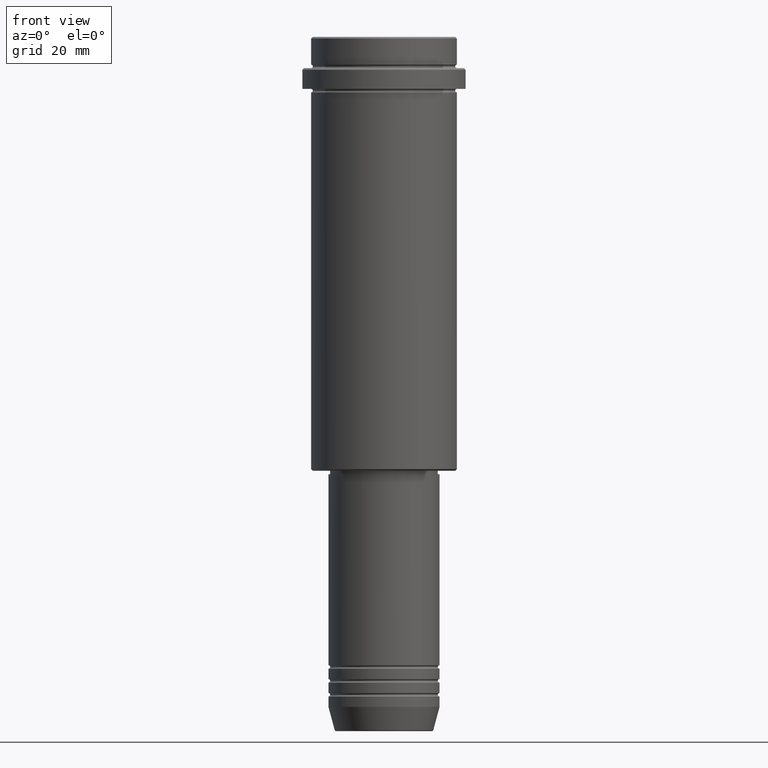
[diagram: clean part render]
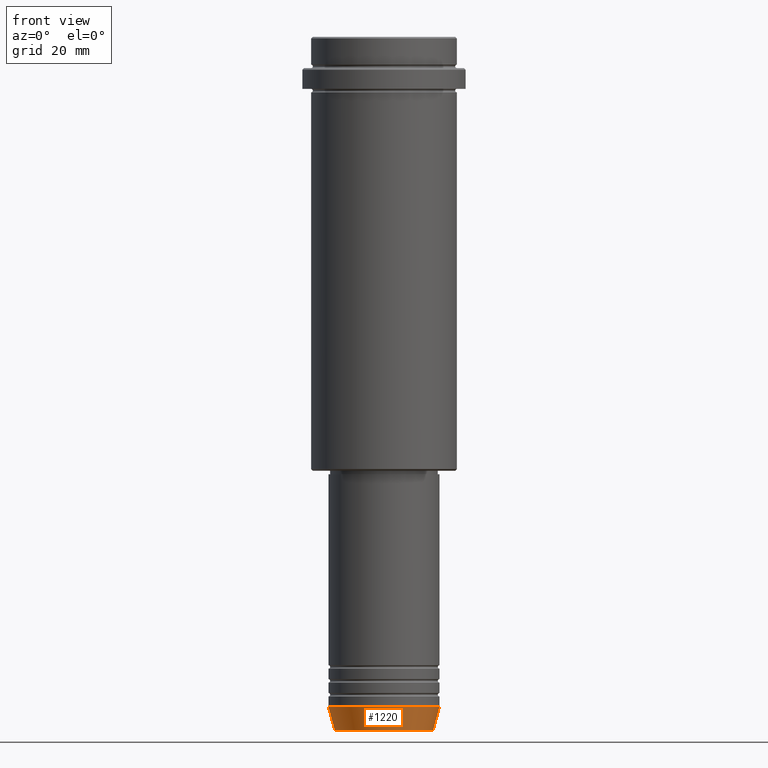
[diagram: same view with one face highlighted and labeled with its STEP entity id]
A machine part, front view. The second image highlights one B-rep face of the part: STEP entity #1220.
In plain terms, the highlighted conical surface has half-angle 15 deg.
Its self-contained STEP definition (entity closure, byte-faithful):
#3 = ORIENTED_EDGE ( 'NONE', *, *, #1242, .F. ) ;
#23 = DIRECTION ( 'NONE',  ( 0.2588190451025213501, 0.000000000000000000, 0.9659258262890680902 ) ) ;
#74 = CIRCLE ( 'NONE', #875, 16.00000000000000000 ) ;
#75 = CARTESIAN_POINT ( 'NONE',  ( 0.000000000000000000, 0.000000000000000000, -193.0000000000000000 ) ) ;
#147 = DIRECTION ( 'NONE',  ( -0.000000000000000000, -0.000000000000000000, 1.000000000000000000 ) ) ;
#177 = VERTEX_POINT ( 'NONE', #1379 ) ;
#189 = VERTEX_POINT ( 'NONE', #613 ) ;
#265 = VERTEX_POINT ( 'NONE', #922 ) ;
#273 = DIRECTION ( 'NONE',  ( -0.000000000000000000, -0.000000000000000000, 1.000000000000000000 ) ) ;
#417 = ORIENTED_EDGE ( 'NONE', *, *, #552, .T. ) ;
#532 = CARTESIAN_POINT ( 'NONE',  ( 16.00000000000000000, 0.000000000000000000, -193.0000000000000000 ) ) ;
#552 = EDGE_CURVE ( 'NONE', #177, #265, #996, .T. ) ;
#559 = DIRECTION ( 'NONE',  ( 1.000000000000000000, 0.000000000000000000, 0.000000000000000000 ) ) ;
#613 = CARTESIAN_POINT ( 'NONE',  ( -16.00000000000000000, 1.959434878635765131E-15, -193.0000000000000000 ) ) ;
#614 = DIRECTION ( 'NONE',  ( 1.000000000000000000, 0.000000000000000000, 0.000000000000000000 ) ) ;
#618 = ORIENTED_EDGE ( 'NONE', *, *, #896, .T. ) ;
#708 = ORIENTED_EDGE ( 'NONE', *, *, #794, .F. ) ;
#709 = AXIS2_PLACEMENT_3D ( 'NONE', #1265, #147, #559 ) ;
#710 = DIRECTION ( 'NONE',  ( 1.000000000000000000, 0.000000000000000000, 0.000000000000000000 ) ) ;
#783 = VECTOR ( 'NONE', #23, 1000.000000000000000 ) ;
#785 = AXIS2_PLACEMENT_3D ( 'NONE', #75, #931, #614 ) ;
#794 = EDGE_CURVE ( 'NONE', #189, #265, #74, .T. ) ;
#829 = CARTESIAN_POINT ( 'NONE',  ( -16.00000000000000000, 1.959434878635765131E-15, -193.0000000000000000 ) ) ;
#833 = CARTESIAN_POINT ( 'NONE',  ( -14.22365507213718239, 1.850665122131322942E-15, -199.6294095225512706 ) ) ;
#875 = AXIS2_PLACEMENT_3D ( 'NONE', #1368, #273, #710 ) ;
#896 = EDGE_CURVE ( 'NONE', #997, #177, #1275, .T. ) ;
#922 = CARTESIAN_POINT ( 'NONE',  ( 16.00000000000000000, 0.000000000000000000, -193.0000000000000000 ) ) ;
#931 = DIRECTION ( 'NONE',  ( -0.000000000000000000, -0.000000000000000000, 1.000000000000000000 ) ) ;
#977 = EDGE_LOOP ( 'NONE', ( #3, #618, #417, #708 ) ) ;
#996 = LINE ( 'NONE', #532, #783 ) ;
#997 = VERTEX_POINT ( 'NONE', #833 ) ;
#1195 = FACE_OUTER_BOUND ( 'NONE', #977, .T. ) ;
#1213 = VECTOR ( 'NONE', #1281, 1000.000000000000000 ) ;
#1220 = ADVANCED_FACE ( 'NONE', ( #1195 ), #1248, .T. ) ;
#1242 = EDGE_CURVE ( 'NONE', #997, #189, #1384, .T. ) ;
#1248 = CONICAL_SURFACE ( 'NONE', #785, 16.00000000000000000, 0.2617993877991500740 ) ;
#1265 = CARTESIAN_POINT ( 'NONE',  ( 0.000000000000000000, 0.000000000000000000, -199.6294095225512706 ) ) ;
#1275 = CIRCLE ( 'NONE', #709, 14.22365507213718239 ) ;
#1281 = DIRECTION ( 'NONE',  ( -0.2588190451025213501, 3.169619151431772337E-17, 0.9659258262890680902 ) ) ;
#1368 = CARTESIAN_POINT ( 'NONE',  ( 0.000000000000000000, 0.000000000000000000, -193.0000000000000000 ) ) ;
#1379 = CARTESIAN_POINT ( 'NONE',  ( 14.22365507213718239, 0.000000000000000000, -199.6294095225512706 ) ) ;
#1384 = LINE ( 'NONE', #829, #1213 ) ;